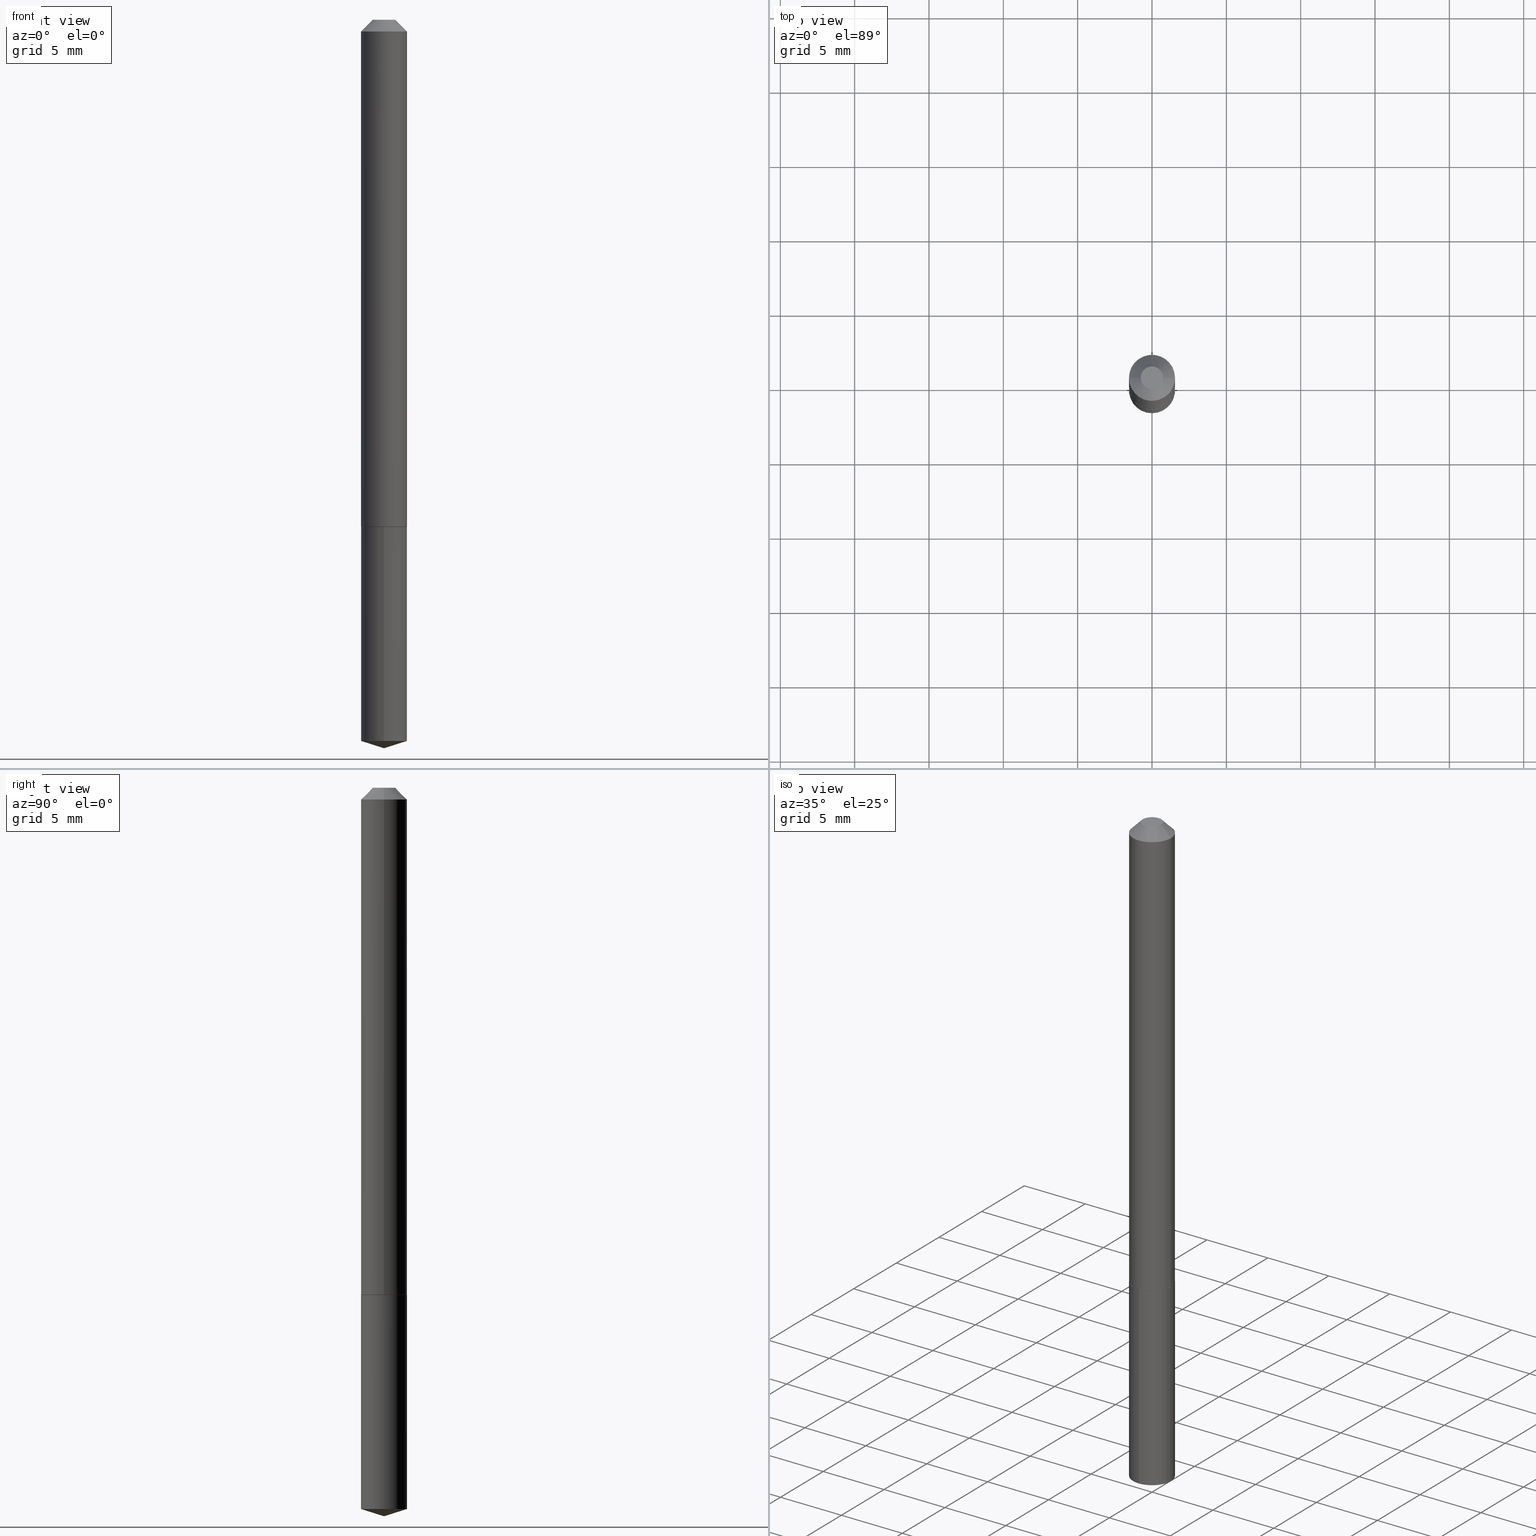
[diagram: canonical four-view strip — front | top / right | iso, engineering-drawing reading convention]
A machine part, canonical four-view strip (front | top / right | iso — engineering-drawing reading convention). The complete STEP part file that produces these views, byte-faithful:
ISO-10303-21;
HEADER;
FILE_DESCRIPTION (( 'STEP AP203' ),
    '1' );
FILE_NAME ('62073.STEP',
    '2024-04-23T05:32:35',
    ( '' ),
    ( '' ),
    'SwSTEP 2.0',
    'SolidWorks 2023',
    '' );
FILE_SCHEMA (( 'CONFIG_CONTROL_DESIGN' ));
ENDSEC;

DATA;
#1 = VECTOR ( 'NONE', #158, 39.37007874015748143 ) ;
#2 = DATE_TIME_ROLE ( 'classification_date' ) ;
#3 = CYLINDRICAL_SURFACE ( 'NONE', #385, 0.06100000000000008193 ) ;
#4 = PERSON_AND_ORGANIZATION_ROLE ( 'design_supplier' ) ;
#5 = DIRECTION ( 'NONE',  ( -6.982962677686268288E-15, -1.000000000000000000, 3.500519750498639351E-15 ) ) ;
#6 = CALENDAR_DATE ( 2024, 23, 4 ) ;
#7 = AXIS2_PLACEMENT_3D ( 'NONE', #273, #245, #362 ) ;
#8 = PERSON_AND_ORGANIZATION ( #263, #314 ) ;
#9 = VERTEX_POINT ( 'NONE', #37 ) ;
#10 = DIRECTION ( 'NONE',  ( -2.445528322279636320E-29, 3.491396108408376295E-15, 1.000000000000000000 ) ) ;
#11 = EDGE_LOOP ( 'NONE', ( #50, #220, #386, #389 ) ) ;
#12 = CARTESIAN_POINT ( 'NONE',  ( 4.334310688136938416E-16, 0.06099999999999530798, -1.342400000000000038 ) ) ;
#13 = EDGE_LOOP ( 'NONE', ( #48, #298, #127 ) ) ;
#14 = VECTOR ( 'NONE', #267, 39.37007874015748854 ) ;
#15 = DIRECTION ( 'NONE',  ( -2.445468806185136877E-29, 3.491481338843145188E-15, 1.000000000000000000 ) ) ;
#16 = APPROVAL ( #39, 'UNSPECIFIED' ) ;
#17 = VERTEX_POINT ( 'NONE', #289 ) ;
#18 = CARTESIAN_POINT ( 'NONE',  ( 4.670553392895165587E-29, -6.668215835233079281E-15, -1.909866773878382551 ) ) ;
#19 = ORIENTED_EDGE ( 'NONE', *, *, #239, .T. ) ;
#20 = CARTESIAN_POINT ( 'NONE',  ( -5.839929314523175409E-48, 8.337871319499082469E-34, 2.388061258337334140E-19 ) ) ;
#21 = CLOSED_SHELL ( 'NONE', ( #126, #388, #93, #354, #159 ) ) ;
#22 = DIRECTION ( 'NONE',  ( -2.445468806185136597E-29, 3.491481338843145583E-15, 1.000000000000000000 ) ) ;
#23 = AXIS2_PLACEMENT_3D ( 'NONE', #261, #374, #225 ) ;
#24 = CARTESIAN_POINT ( 'NONE',  ( 7.515549292457531832E-29, 1.374577180811171330E-15, -1.342399999999999816 ) ) ;
#25 = LINE ( 'NONE', #97, #377 ) ;
#26 = AXIS2_PLACEMENT_3D ( 'NONE', #74, #198, #31 ) ;
#27 = CONICAL_SURFACE ( 'NONE', #26, 124.8659371009173924, 1.265363707695897011 ) ;
#28 = ADVANCED_FACE ( 'NONE', ( #319 ), #246, .T. ) ;
#29 = CARTESIAN_POINT ( 'NONE',  ( 7.642090019328599159E-31, -1.091087918388489774E-16, -0.03125000000000019429 ) ) ;
#30 = PERSON_AND_ORGANIZATION_ROLE ( 'classification_officer' ) ;
#31 = DIRECTION ( 'NONE',  ( -6.982962677686268288E-15, -1.000000000000000000, 3.500519750498639351E-15 ) ) ;
#32 = DATE_AND_TIME ( #6, #361 ) ;
#33 = LOCAL_TIME ( 1, 32, 35.00000000000000000, #151 ) ;
#34 = CIRCLE ( 'NONE', #106, 0.06099999999999999173 ) ;
#35 = CC_DESIGN_DATE_AND_TIME_ASSIGNMENT ( #331, #2, ( #56 ) ) ;
#36 = UNCERTAINTY_MEASURE_WITH_UNIT (LENGTH_MEASURE( 1.000000000000000082E-05 ), #57, 'distance_accuracy_value', 'NONE');
#37 = CARTESIAN_POINT ( 'NONE',  ( 4.717668686509646130E-29, -6.735252232730598174E-15, -1.929099999999999815 ) ) ;
#38 = DIRECTION ( 'NONE',  ( 1.000000000000000000, -6.982962677686265922E-15, 0.000000000000000000 ) ) ;
#39 = APPROVAL_STATUS ( 'not_yet_approved' ) ;
#40 = CARTESIAN_POINT ( 'NONE',  ( -0.06100000000000016520, -4.251787739779952795E-15, -1.341899999999999649 ) ) ;
#41 = EDGE_CURVE ( 'NONE', #9, #372, #255, .T. ) ;
#42 = APPROVAL_PERSON_ORGANIZATION ( #8, #16, #368 ) ;
#43 = DIRECTION ( 'NONE',  ( 1.000000000000000000, -6.982962677686265922E-15, 0.000000000000000000 ) ) ;
#44 = VERTEX_POINT ( 'NONE', #195 ) ;
#45 = DIRECTION ( 'NONE',  ( -2.445468806185136597E-29, 3.491481338843145583E-15, 1.000000000000000000 ) ) ;
#46 = EDGE_CURVE ( 'NONE', #256, #90, #206, .T. ) ;
#47 = DIRECTION ( 'NONE',  ( 2.445468806185136597E-29, -3.491481338843145583E-15, -1.000000000000000000 ) ) ;
#48 = ORIENTED_EDGE ( 'NONE', *, *, #41, .F. ) ;
#49 = CARTESIAN_POINT ( 'NONE',  ( 4.334310688137077946E-16, 0.06099999999999530798, -1.342400000000000038 ) ) ;
#50 = ORIENTED_EDGE ( 'NONE', *, *, #215, .F. ) ;
#51 = DIRECTION ( 'NONE',  ( 1.000000000000000000, -6.982962677686265922E-15, 0.000000000000000000 ) ) ;
#52 = VERTEX_POINT ( 'NONE', #371 ) ;
#53 = DIRECTION ( 'NONE',  ( -2.445468806185136597E-29, 3.491481338843145583E-15, 1.000000000000000000 ) ) ;
#54 = CC_DESIGN_PERSON_AND_ORGANIZATION_ASSIGNMENT ( #274, #65, ( #153 ) ) ;
#55 = EDGE_LOOP ( 'NONE', ( #197, #351 ) ) ;
#56 = SECURITY_CLASSIFICATION ( '', '', #280 ) ;
#57 =( CONVERSION_BASED_UNIT ( 'INCH', #327 ) LENGTH_UNIT ( ) NAMED_UNIT ( #259 ) );
#58 = CIRCLE ( 'NONE', #84, 0.06099999999999999173 ) ;
#59 = APPLICATION_PROTOCOL_DEFINITION ( 'international standard', 'config_control_design', 1994, #156 ) ;
#60 = EDGE_CURVE ( 'NONE', #372, #52, #34, .T. ) ;
#61 = CARTESIAN_POINT ( 'NONE',  ( 4.334310688137076467E-16, 0.06099999999999330957, -1.909866773878382773 ) ) ;
#62 = ORIENTED_EDGE ( 'NONE', *, *, #135, .T. ) ;
#63 = CARTESIAN_POINT ( 'NONE',  ( -9.156305381733011471E-28, 1.307211730550509619E-13, 37.44097874015747607 ) ) ;
#64 = AXIS2_PLACEMENT_3D ( 'NONE', #20, #265, #87 ) ;
#65 = PERSON_AND_ORGANIZATION_ROLE ( 'creator' ) ;
#66 = APPROVAL_ROLE ( '' ) ;
#67 = CARTESIAN_POINT ( 'NONE',  ( 0.06050000000000021333, -5.109433791263057805E-15, -1.342399999999999594 ) ) ;
#68 = EDGE_CURVE ( 'NONE', #145, #90, #222, .T. ) ;
#69 = PERSON_AND_ORGANIZATION ( #263, #314 ) ;
#70 = AXIS2_PLACEMENT_3D ( 'NONE', #275, #271, #95 ) ;
#71 = DIRECTION ( 'NONE',  ( 6.776566513254267604E-15, 0.9537169507482303743, 0.3007057995042620724 ) ) ;
#72 = PERSON_AND_ORGANIZATION_ROLE ( 'design_owner' ) ;
#73 = CARTESIAN_POINT ( 'NONE',  ( -0.06100000000000016520, -4.251787739779952795E-15, -1.341899999999999649 ) ) ;
#74 = CARTESIAN_POINT ( 'NONE',  ( -9.156305381733011471E-28, 1.307211730550509619E-13, 37.44097874015747607 ) ) ;
#75 = AXIS2_PLACEMENT_3D ( 'NONE', #168, #369, #103 ) ;
#76 = CIRCLE ( 'NONE', #182, 0.06099999999999999173 ) ;
#77 = EDGE_LOOP ( 'NONE', ( #266, #81, #203, #209 ) ) ;
#78 = FACE_OUTER_BOUND ( 'NONE', #240, .T. ) ;
#79 = ORIENTED_EDGE ( 'NONE', *, *, #142, .T. ) ;
#80 = CARTESIAN_POINT ( 'NONE',  ( 0.06100000000000016520, -5.111179531932479308E-15, -1.341899999999999649 ) ) ;
#81 = ORIENTED_EDGE ( 'NONE', *, *, #170, .T. ) ;
#82 = CARTESIAN_POINT ( 'NONE',  ( -2.919964657261587705E-48, 4.168935659749541235E-34, 1.194030629168667070E-19 ) ) ;
#83 = ORIENTED_EDGE ( 'NONE', *, *, #336, .T. ) ;
#84 = AXIS2_PLACEMENT_3D ( 'NONE', #258, #316, #233 ) ;
#85 = DIRECTION ( 'NONE',  ( -1.000000000000000000, 6.982962677686265922E-15, -4.876176775795935793E-29 ) ) ;
#86 = ORIENTED_EDGE ( 'NONE', *, *, #380, .T. ) ;
#87 = DIRECTION ( 'NONE',  ( 1.000000000000000000, -6.982962677686266711E-15, 4.876192930765217323E-29 ) ) ;
#88 = PRODUCT_RELATED_PRODUCT_CATEGORY ( 'detail', '', ( #124 ) ) ;
#89 = LINE ( 'NONE', #125, #1 ) ;
#90 = VERTEX_POINT ( 'NONE', #40 ) ;
#91 = DIRECTION ( 'NONE',  ( 1.000000000000000000, -6.982962677686265922E-15, 4.876176775795935793E-29 ) ) ;
#92 = CIRCLE ( 'NONE', #306, 0.06099999999999999173 ) ;
#93 = ADVANCED_FACE ( 'NONE', ( #344 ), #27, .T. ) ;
#94 = ADVANCED_BREP_SHAPE_REPRESENTATION ( '62073', ( #101, #342, #155 ), #235 ) ;
#95 = DIRECTION ( 'NONE',  ( 1.000000000000000000, -6.982962677686266711E-15, 4.876176775795935793E-29 ) ) ;
#96 = ORIENTED_EDGE ( 'NONE', *, *, #348, .T. ) ;
#97 = CARTESIAN_POINT ( 'NONE',  ( -4.259607233388293679E-16, -0.06100000000000468242, -1.342399999999999594 ) ) ;
#98 = PERSON_AND_ORGANIZATION ( #263, #314 ) ;
#99 = DATE_AND_TIME ( #192, #353 ) ;
#100 = PERSON_AND_ORGANIZATION ( #263, #314 ) ;
#101 = MANIFOLD_SOLID_BREP ( 'Body-Move/Copy2[1]', #21 ) ;
#102 = COORDINATED_UNIVERSAL_TIME_OFFSET ( 5, 0, .BEHIND. ) ;
#103 = DIRECTION ( 'NONE',  ( 1.000000000000000000, -6.982962677686265922E-15, 0.000000000000000000 ) ) ;
#104 = APPROVAL_ROLE ( '' ) ;
#105 = MECHANICAL_CONTEXT ( 'NONE', #156, 'mechanical' ) ;
#106 = AXIS2_PLACEMENT_3D ( 'NONE', #219, #218, #341 ) ;
#107 = PRODUCT_DEFINITION ( 'UNKNOWN', '', #153, #387 ) ;
#108 = DIRECTION ( 'NONE',  ( -2.445468806185136597E-29, 3.491481338843145583E-15, 1.000000000000000000 ) ) ;
#109 = VERTEX_POINT ( 'NONE', #67 ) ;
#110 = DIRECTION ( 'NONE',  ( -2.445468806185136597E-29, 3.491481338843145583E-15, 1.000000000000000000 ) ) ;
#111 = VECTOR ( 'NONE', #115, 39.37007874015748143 ) ;
#112 = CIRCLE ( 'NONE', #23, 0.06099999999999999173 ) ;
#113 = ORIENTED_EDGE ( 'NONE', *, *, #41, .T. ) ;
#114 = PRODUCT_DEFINITION_SHAPE ( 'NONE', 'NONE',  #107 ) ;
#115 = DIRECTION ( 'NONE',  ( -0.7071067811865453523, 2.468850131082234184E-15, -0.7071067811865496822 ) ) ;
#116 = LINE ( 'NONE', #12, #279 ) ;
#117 = ORIENTED_EDGE ( 'NONE', *, *, #149, .F. ) ;
#118 = CARTESIAN_POINT ( 'NONE',  ( 3.282797325422927074E-29, -4.686964549263038164E-15, -1.342399999999999816 ) ) ;
#119 = APPROVAL_PERSON_ORGANIZATION ( #133, #249, #66 ) ;
#120 = AXIS2_PLACEMENT_3D ( 'NONE', #276, #303, #366 ) ;
#121 = EDGE_CURVE ( 'NONE', #177, #343, #207, .T. ) ;
#122 = LINE ( 'NONE', #291, #262 ) ;
#123 =( NAMED_UNIT ( * ) PLANE_ANGLE_UNIT ( ) SI_UNIT ( $, .RADIAN. ) );
#124 = PRODUCT ( '62073', '62073', '', ( #105 ) ) ;
#125 = CARTESIAN_POINT ( 'NONE',  ( 0.06100000000000016520, -5.111179531932479308E-15, -1.341899999999999649 ) ) ;
#126 = ADVANCED_FACE ( 'NONE', ( #384 ), #358, .T. ) ;
#127 = ORIENTED_EDGE ( 'NONE', *, *, #60, .F. ) ;
#128 = CARTESIAN_POINT ( 'NONE',  ( 3.282797325422927074E-29, -4.686964549263038164E-15, -1.342399999999999816 ) ) ;
#129 = AXIS2_PLACEMENT_3D ( 'NONE', #24, #330, #91 ) ;
#130 = CARTESIAN_POINT ( 'NONE',  ( 0.000000000000000000, 0.000000000000000000, 0.000000000000000000 ) ) ;
#131 = FACE_OUTER_BOUND ( 'NONE', #232, .T. ) ;
#132 = ADVANCED_FACE ( 'NONE', ( #323 ), #237, .F. ) ;
#133 = PERSON_AND_ORGANIZATION ( #263, #314 ) ;
#134 = CARTESIAN_POINT ( 'NONE',  ( 4.717670087668898739E-29, -6.735252232730598174E-15, -1.929099999999999815 ) ) ;
#135 = EDGE_CURVE ( 'NONE', #17, #287, #297, .T. ) ;
#136 = CIRCLE ( 'NONE', #311, 0.06050000000000021333 ) ;
#137 = PERSON_AND_ORGANIZATION_ROLE ( 'creator' ) ;
#138 = ORIENTED_EDGE ( 'NONE', *, *, #239, .F. ) ;
#139 = CALENDAR_DATE ( 2024, 23, 4 ) ;
#140 = DIRECTION ( 'NONE',  ( -2.445528322279636320E-29, 3.491396108408376295E-15, 1.000000000000000000 ) ) ;
#141 = ORIENTED_EDGE ( 'NONE', *, *, #68, .F. ) ;
#142 = EDGE_CURVE ( 'NONE', #343, #177, #58, .T. ) ;
#143 = CARTESIAN_POINT ( 'NONE',  ( -0.06100000000000008193, 4.334310688136616956E-16, -3.000550405055496697E-30 ) ) ;
#144 = CIRCLE ( 'NONE', #120, 0.02974999999999999520 ) ;
#145 = VERTEX_POINT ( 'NONE', #204 ) ;
#146 = CARTESIAN_POINT ( 'NONE',  ( 0.02974999999999999520, -3.658494925683076743E-16, 2.388061258357383071E-19 ) ) ;
#147 = ORIENTED_EDGE ( 'NONE', *, *, #299, .F. ) ;
#148 = LINE ( 'NONE', #315, #111 ) ;
#149 = EDGE_CURVE ( 'NONE', #90, #256, #340, .T. ) ;
#150 = ORIENTED_EDGE ( 'NONE', *, *, #60, .T. ) ;
#151 = COORDINATED_UNIVERSAL_TIME_OFFSET ( 5, 0, .BEHIND. ) ;
#152 = DIRECTION ( 'NONE',  ( 6.982962677686265922E-15, 1.000000000000000000, -3.491396108408376295E-15 ) ) ;
#153 = PRODUCT_DEFINITION_FORMATION_WITH_SPECIFIED_SOURCE ( 'ANY', '', #124, .NOT_KNOWN. ) ;
#154 = CLOSED_SHELL ( 'NONE', ( #270, #317, #221, #294, #28, #365, #324, #132 ) ) ;
#155 = AXIS2_PLACEMENT_3D ( 'NONE', #370, #309, #167 ) ;
#156 = APPLICATION_CONTEXT ( 'configuration controlled 3d designs of mechanical parts and assemblies' ) ;
#157 = DIRECTION ( 'NONE',  ( 2.445468806185136597E-29, -3.491481338843145583E-15, -1.000000000000000000 ) ) ;
#158 = DIRECTION ( 'NONE',  ( 0.7071067811865837660, -2.468850131082636503E-15, 0.7071067811865112684 ) ) ;
#159 = ADVANCED_FACE ( 'NONE', ( #318 ), #178, .F. ) ;
#160 = APPROVAL_DATE_TIME ( #217, #176 ) ;
#161 = CARTESIAN_POINT ( 'NONE',  ( 3.282797325422925953E-29, -4.686964549263036586E-15, -1.342399999999999594 ) ) ;
#162 = FACE_OUTER_BOUND ( 'NONE', #174, .T. ) ;
#163 = CC_DESIGN_PERSON_AND_ORGANIZATION_ASSIGNMENT ( #69, #72, ( #124 ) ) ;
#164 = CARTESIAN_POINT ( 'NONE',  ( 3.281574591019834273E-29, -4.685218808593615871E-15, -1.341899999999999649 ) ) ;
#165 = CIRCLE ( 'NONE', #7, 0.06050000000000021333 ) ;
#166 = EDGE_CURVE ( 'NONE', #287, #250, #122, .T. ) ;
#167 = DIRECTION ( 'NONE',  ( 1.000000000000000000, 0.000000000000000000, 0.000000000000000000 ) ) ;
#168 = CARTESIAN_POINT ( 'NONE',  ( 3.281574591019834273E-29, -4.685218808593615871E-15, -1.341899999999999649 ) ) ;
#169 = CARTESIAN_POINT ( 'NONE',  ( 4.717508897699133767E-29, -6.735481059401867667E-15, -1.929099999999999815 ) ) ;
#170 = EDGE_CURVE ( 'NONE', #372, #177, #116, .T. ) ;
#171 = FACE_OUTER_BOUND ( 'NONE', #230, .T. ) ;
#172 = CARTESIAN_POINT ( 'NONE',  ( 0.06100000000000008193, -4.259607233388628452E-16, 2.974467833235524715E-30 ) ) ;
#173 = AXIS2_PLACEMENT_3D ( 'NONE', #378, #47, #228 ) ;
#174 = EDGE_LOOP ( 'NONE', ( #264, #150, #83, #236 ) ) ;
#175 = CARTESIAN_POINT ( 'NONE',  ( 3.282797325422927074E-29, -4.686964549263038164E-15, -1.342399999999999816 ) ) ;
#176 = APPROVAL ( #248, 'UNSPECIFIED' ) ;
#177 = VERTEX_POINT ( 'NONE', #49 ) ;
#178 = PLANE ( 'NONE',  #282 ) ;
#179 = ORIENTED_EDGE ( 'NONE', *, *, #215, .T. ) ;
#180 = CC_DESIGN_APPROVAL ( #249, ( #153 ) ) ;
#181 = ORIENTED_EDGE ( 'NONE', *, *, #68, .T. ) ;
#182 = AXIS2_PLACEMENT_3D ( 'NONE', #18, #10, #288 ) ;
#183 = ORIENTED_EDGE ( 'NONE', *, *, #135, .F. ) ;
#184 = CC_DESIGN_PERSON_AND_ORGANIZATION_ASSIGNMENT ( #191, #30, ( #56 ) ) ;
#185 =( LENGTH_UNIT ( ) NAMED_UNIT ( * ) SI_UNIT ( $, .METRE. ) );
#186 = DIRECTION ( 'NONE',  ( 1.000000000000000000, -6.982962677686268288E-15, 0.000000000000000000 ) ) ;
#187 = LOCAL_TIME ( 1, 32, 35.00000000000000000, #364 ) ;
#188 = DIRECTION ( 'NONE',  ( -2.445528322279636320E-29, 3.491396108408376295E-15, 1.000000000000000000 ) ) ;
#189 = EDGE_CURVE ( 'NONE', #17, #44, #148, .T. ) ;
#190 = APPLICATION_CONTEXT ( 'configuration controlled 3d designs of mechanical parts and assemblies' ) ;
#191 = PERSON_AND_ORGANIZATION ( #263, #314 ) ;
#192 = CALENDAR_DATE ( 2024, 23, 4 ) ;
#193 = DIRECTION ( 'NONE',  ( -2.445528322279636320E-29, 3.491396108408376295E-15, 1.000000000000000000 ) ) ;
#194 = CONICAL_SURFACE ( 'NONE', #212, 124.8659371009173924, 1.265363707695897011 ) ;
#195 = CARTESIAN_POINT ( 'NONE',  ( -0.06099999999999999173, -1.963732731402569410E-15, -0.03125000000000019429 ) ) ;
#196 = DIRECTION ( 'NONE',  ( -0.7071067811865837660, 7.493145998870485111E-15, 0.7071067811865112684 ) ) ;
#197 = ORIENTED_EDGE ( 'NONE', *, *, #348, .F. ) ;
#198 = DIRECTION ( 'NONE',  ( -2.445528322279636320E-29, 3.491396108408376295E-15, 1.000000000000000000 ) ) ;
#199 = AXIS2_PLACEMENT_3D ( 'NONE', #128, #360, #211 ) ;
#200 = CC_DESIGN_PERSON_AND_ORGANIZATION_ASSIGNMENT ( #312, #137, ( #107 ) ) ;
#201 = EDGE_LOOP ( 'NONE', ( #79, #292 ) ) ;
#202 = DIRECTION ( 'NONE',  ( -2.445468806185136597E-29, 3.491481338843145583E-15, 1.000000000000000000 ) ) ;
#203 = ORIENTED_EDGE ( 'NONE', *, *, #142, .F. ) ;
#204 = CARTESIAN_POINT ( 'NONE',  ( -0.06050000000000021333, -4.254436966954063996E-15, -1.342399999999999594 ) ) ;
#205 = DIRECTION ( 'NONE',  ( -2.445468806185136877E-29, 3.491481338843145188E-15, 1.000000000000000000 ) ) ;
#206 = CIRCLE ( 'NONE', #355, 0.06100000000000016520 ) ;
#207 = CIRCLE ( 'NONE', #234, 0.06099999999999999173 ) ;
#208 = CARTESIAN_POINT ( 'NONE',  ( 3.281574591019834273E-29, -4.685218808593615871E-15, -1.341899999999999649 ) ) ;
#209 = ORIENTED_EDGE ( 'NONE', *, *, #336, .F. ) ;
#210 = ORIENTED_EDGE ( 'NONE', *, *, #189, .T. ) ;
#211 = DIRECTION ( 'NONE',  ( -6.982962677686265922E-15, -1.000000000000000000, 4.478439333875842027E-15 ) ) ;
#212 = AXIS2_PLACEMENT_3D ( 'NONE', #63, #188, #5 ) ;
#213 = AXIS2_PLACEMENT_3D ( 'NONE', #208, #45, #51 ) ;
#214 = CARTESIAN_POINT ( 'NONE',  ( -4.259607233388293679E-16, -0.06100000000000468242, -1.342399999999999594 ) ) ;
#215 = EDGE_CURVE ( 'NONE', #90, #44, #352, .T. ) ;
#216 = CYLINDRICAL_SURFACE ( 'NONE', #70, 0.06100000000000008193 ) ;
#217 = DATE_AND_TIME ( #301, #187 ) ;
#218 = DIRECTION ( 'NONE',  ( -2.445528322279636320E-29, 3.491396108408376295E-15, 1.000000000000000000 ) ) ;
#219 = CARTESIAN_POINT ( 'NONE',  ( 4.670553392895165587E-29, -6.668215835233079281E-15, -1.909866773878382551 ) ) ;
#220 = ORIENTED_EDGE ( 'NONE', *, *, #149, .T. ) ;
#221 = ADVANCED_FACE ( 'NONE', ( #171 ), #226, .T. ) ;
#222 = LINE ( 'NONE', #73, #321 ) ;
#223 = ORIENTED_EDGE ( 'NONE', *, *, #46, .T. ) ;
#224 = APPROVAL_DATE_TIME ( #257, #249 ) ;
#225 = DIRECTION ( 'NONE',  ( 1.000000000000000000, -6.982962677686268288E-15, 0.000000000000000000 ) ) ;
#226 = CONICAL_SURFACE ( 'NONE', #346, 0.06100000000000016520, 0.7853981633974995713 ) ;
#227 = ORIENTED_EDGE ( 'NONE', *, *, #253, .T. ) ;
#228 = DIRECTION ( 'NONE',  ( -1.000000000000000000, 6.982962677686265922E-15, 0.000000000000000000 ) ) ;
#229 = EDGE_CURVE ( 'NONE', #9, #52, #350, .T. ) ;
#230 = EDGE_LOOP ( 'NONE', ( #96, #181, #359, #147 ) ) ;
#231 = DIRECTION ( 'NONE',  ( -2.445528322279636600E-29, 3.491396108408376295E-15, 1.000000000000000000 ) ) ;
#232 = EDGE_LOOP ( 'NONE', ( #357, #183, #210, #227 ) ) ;
#233 = DIRECTION ( 'NONE',  ( -6.982962677686265922E-15, -1.000000000000000000, 4.478439333875842027E-15 ) ) ;
#234 = AXIS2_PLACEMENT_3D ( 'NONE', #278, #193, #310 ) ;
#235 =( GEOMETRIC_REPRESENTATION_CONTEXT ( 3 ) GLOBAL_UNCERTAINTY_ASSIGNED_CONTEXT ( ( #36 ) ) GLOBAL_UNIT_ASSIGNED_CONTEXT ( ( #57, #123, #272 ) ) REPRESENTATION_CONTEXT ( 'NONE', 'WORKASPACE' ) );
#236 = ORIENTED_EDGE ( 'NONE', *, *, #121, .F. ) ;
#237 = PLANE ( 'NONE',  #284 ) ;
#238 = DIRECTION ( 'NONE',  ( -1.000000000000000000, 6.982962677686265922E-15, 0.000000000000000000 ) ) ;
#239 = EDGE_CURVE ( 'NONE', #250, #44, #92, .T. ) ;
#240 = EDGE_LOOP ( 'NONE', ( #322, #302, #19, #376 ) ) ;
#241 = FACE_OUTER_BOUND ( 'NONE', #11, .T. ) ;
#242 = ORIENTED_EDGE ( 'NONE', *, *, #243, .F. ) ;
#243 = EDGE_CURVE ( 'NONE', #52, #372, #76, .T. ) ;
#244 = DIRECTION ( 'NONE',  ( 1.000000000000000000, -6.982962677686266711E-15, 4.876176775795935793E-29 ) ) ;
#245 = DIRECTION ( 'NONE',  ( -2.445468806185136597E-29, 3.491481338843145583E-15, 1.000000000000000000 ) ) ;
#246 = CONICAL_SURFACE ( 'NONE', #75, 0.06100000000000016520, 0.7853981633974995713 ) ;
#247 = CC_DESIGN_APPROVAL ( #16, ( #107 ) ) ;
#248 = APPROVAL_STATUS ( 'not_yet_approved' ) ;
#249 = APPROVAL ( #338, 'UNSPECIFIED' ) ;
#250 = VERTEX_POINT ( 'NONE', #382 ) ;
#251 = APPROVAL_PERSON_ORGANIZATION ( #100, #176, #104 ) ;
#252 = APPROVAL_DATE_TIME ( #32, #16 ) ;
#253 = EDGE_CURVE ( 'NONE', #44, #250, #112, .T. ) ;
#254 = ORIENTED_EDGE ( 'NONE', *, *, #299, .T. ) ;
#255 = LINE ( 'NONE', #134, #296 ) ;
#256 = VERTEX_POINT ( 'NONE', #80 ) ;
#257 = DATE_AND_TIME ( #139, #33 ) ;
#258 = CARTESIAN_POINT ( 'NONE',  ( 3.282797325422927074E-29, -4.686964549263038164E-15, -1.342399999999999816 ) ) ;
#259 = DIMENSIONAL_EXPONENTS ( 1.000000000000000000, 0.000000000000000000, 0.000000000000000000, 0.000000000000000000, 0.000000000000000000, 0.000000000000000000, 0.000000000000000000 ) ;
#260 = AXIS2_PLACEMENT_3D ( 'NONE', #118, #140, #356 ) ;
#261 = CARTESIAN_POINT ( 'NONE',  ( 7.642090019328599159E-31, -1.091087918388489774E-16, -0.03125000000000019429 ) ) ;
#262 = VECTOR ( 'NONE', #269, 39.37007874015748143 ) ;
#263 = PERSON ( 'UNSPECIFIED', 'UNSPECIFIED', 'UNSPECIFIED', ('UNSPECIFIED'), ('UNSPECIFIED'), ('UNSPECIFIED') ) ;
#264 = ORIENTED_EDGE ( 'NONE', *, *, #170, .F. ) ;
#265 = DIRECTION ( 'NONE',  ( -2.445468806185136597E-29, 3.491481338843145583E-15, 1.000000000000000000 ) ) ;
#266 = ORIENTED_EDGE ( 'NONE', *, *, #243, .T. ) ;
#267 = DIRECTION ( 'NONE',  ( -6.659769872151641555E-15, -0.9537169507482281539, 0.3007057995042686782 ) ) ;
#268 = ORIENTED_EDGE ( 'NONE', *, *, #283, .F. ) ;
#269 = DIRECTION ( 'NONE',  ( 0.7071067811865453523, -7.319954787623248157E-15, -0.7071067811865496822 ) ) ;
#270 = ADVANCED_FACE ( 'NONE', ( #78 ), #328, .T. ) ;
#271 = DIRECTION ( 'NONE',  ( -2.445468806185136597E-29, 3.491481338843145583E-15, 1.000000000000000000 ) ) ;
#272 =( NAMED_UNIT ( * ) SI_UNIT ( $, .STERADIAN. ) SOLID_ANGLE_UNIT ( ) );
#273 = CARTESIAN_POINT ( 'NONE',  ( 3.282797325422925953E-29, -4.686964549263036586E-15, -1.342399999999999594 ) ) ;
#274 = PERSON_AND_ORGANIZATION ( #263, #314 ) ;
#275 = CARTESIAN_POINT ( 'NONE',  ( 0.000000000000000000, 0.000000000000000000, 0.000000000000000000 ) ) ;
#276 = CARTESIAN_POINT ( 'NONE',  ( -5.839929314523175409E-48, 8.337871319499082469E-34, 2.388061258337334140E-19 ) ) ;
#277 = APPLICATION_PROTOCOL_DEFINITION ( 'international standard', 'config_control_design', 1994, #190 ) ;
#278 = CARTESIAN_POINT ( 'NONE',  ( 3.282797325422927074E-29, -4.686964549263038164E-15, -1.342399999999999816 ) ) ;
#279 = VECTOR ( 'NONE', #231, 39.37007874015748143 ) ;
#280 = SECURITY_CLASSIFICATION_LEVEL ( 'unclassified' ) ;
#281 = CC_DESIGN_APPROVAL ( #176, ( #56 ) ) ;
#282 = AXIS2_PLACEMENT_3D ( 'NONE', #175, #293, #152 ) ;
#283 = EDGE_CURVE ( 'NONE', #256, #250, #290, .T. ) ;
#284 = AXIS2_PLACEMENT_3D ( 'NONE', #82, #379, #85 ) ;
#285 = VECTOR ( 'NONE', #15, 39.37007874015748143 ) ;
#286 = CARTESIAN_POINT ( 'NONE',  ( 7.642090019328599159E-31, -1.091087918388489774E-16, -0.03125000000000019429 ) ) ;
#287 = VERTEX_POINT ( 'NONE', #146 ) ;
#288 = DIRECTION ( 'NONE',  ( -6.982962677686265922E-15, -1.000000000000000000, 4.478439333875842027E-15 ) ) ;
#289 = CARTESIAN_POINT ( 'NONE',  ( -0.02974999999999999520, 2.622975355805897859E-16, 2.388061258320900661E-19 ) ) ;
#290 = LINE ( 'NONE', #172, #285 ) ;
#291 = CARTESIAN_POINT ( 'NONE',  ( 0.06099999999999999173, -5.275991697029123066E-16, -0.03125000000000019429 ) ) ;
#292 = ORIENTED_EDGE ( 'NONE', *, *, #121, .T. ) ;
#293 = DIRECTION ( 'NONE',  ( 2.445528322279636040E-29, -3.491396108408376295E-15, -1.000000000000000000 ) ) ;
#294 = ADVANCED_FACE ( 'NONE', ( #363 ), #295, .F. ) ;
#295 = PLANE ( 'NONE',  #129 ) ;
#296 = VECTOR ( 'NONE', #71, 39.37007874015748143 ) ;
#297 = CIRCLE ( 'NONE', #64, 0.02974999999999999520 ) ;
#298 = ORIENTED_EDGE ( 'NONE', *, *, #229, .T. ) ;
#299 = EDGE_CURVE ( 'NONE', #109, #256, #89, .T. ) ;
#300 = DIRECTION ( 'NONE',  ( -2.445528322279636600E-29, 3.491396108408376295E-15, 1.000000000000000000 ) ) ;
#301 = CALENDAR_DATE ( 2024, 23, 4 ) ;
#302 = ORIENTED_EDGE ( 'NONE', *, *, #166, .T. ) ;
#303 = DIRECTION ( 'NONE',  ( -2.445468806185136597E-29, 3.491481338843145583E-15, 1.000000000000000000 ) ) ;
#304 = LOCAL_TIME ( 1, 32, 35.00000000000000000, #367 ) ;
#305 = SHAPE_DEFINITION_REPRESENTATION ( #114, #94 ) ;
#306 = AXIS2_PLACEMENT_3D ( 'NONE', #286, #110, #320 ) ;
#307 = CYLINDRICAL_SURFACE ( 'NONE', #199, 0.06099999999999999173 ) ;
#308 = EDGE_CURVE ( 'NONE', #145, #109, #165, .T. ) ;
#309 = DIRECTION ( 'NONE',  ( 0.000000000000000000, 0.000000000000000000, 1.000000000000000000 ) ) ;
#310 = DIRECTION ( 'NONE',  ( -6.982962677686265922E-15, -1.000000000000000000, 4.478439333875842027E-15 ) ) ;
#311 = AXIS2_PLACEMENT_3D ( 'NONE', #161, #53, #186 ) ;
#312 = PERSON_AND_ORGANIZATION ( #263, #314 ) ;
#313 = CC_DESIGN_DATE_AND_TIME_ASSIGNMENT ( #99, #335, ( #107 ) ) ;
#314 = ORGANIZATION ( 'UNSPECIFIED', 'UNSPECIFIED', '' ) ;
#315 = CARTESIAN_POINT ( 'NONE',  ( -0.06099999999999999173, 3.168519315000132022E-16, -0.03125000000000019429 ) ) ;
#316 = DIRECTION ( 'NONE',  ( -2.445528322279636320E-29, 3.491396108408376295E-15, 1.000000000000000000 ) ) ;
#317 = ADVANCED_FACE ( 'NONE', ( #390 ), #3, .T. ) ;
#318 = FACE_OUTER_BOUND ( 'NONE', #201, .T. ) ;
#319 = FACE_OUTER_BOUND ( 'NONE', #345, .T. ) ;
#320 = DIRECTION ( 'NONE',  ( 1.000000000000000000, -6.982962677686268288E-15, 0.000000000000000000 ) ) ;
#321 = VECTOR ( 'NONE', #196, 39.37007874015748143 ) ;
#322 = ORIENTED_EDGE ( 'NONE', *, *, #380, .F. ) ;
#323 = FACE_OUTER_BOUND ( 'NONE', #383, .T. ) ;
#324 = ADVANCED_FACE ( 'NONE', ( #131 ), #334, .T. ) ;
#325 = EDGE_LOOP ( 'NONE', ( #381, #113, #242 ) ) ;
#326 = VECTOR ( 'NONE', #205, 39.37007874015748143 ) ;
#327 = LENGTH_MEASURE_WITH_UNIT ( LENGTH_MEASURE( 0.02539999999999999897 ), #185 );
#328 = CONICAL_SURFACE ( 'NONE', #173, 0.06099999999999999173, 0.7853981633974452814 ) ;
#329 = EDGE_LOOP ( 'NONE', ( #223, #179, #138, #268 ) ) ;
#330 = DIRECTION ( 'NONE',  ( -2.438088387897960049E-29, 3.491481338843145188E-15, 1.000000000000000000 ) ) ;
#331 = DATE_AND_TIME ( #337, #304 ) ;
#332 = FACE_OUTER_BOUND ( 'NONE', #325, .T. ) ;
#333 = CC_DESIGN_SECURITY_CLASSIFICATION ( #56, ( #153 ) ) ;
#334 = CONICAL_SURFACE ( 'NONE', #375, 0.06099999999999999173, 0.7853981633974452814 ) ;
#335 = DATE_TIME_ROLE ( 'creation_date' ) ;
#336 = EDGE_CURVE ( 'NONE', #52, #343, #25, .T. ) ;
#337 = CALENDAR_DATE ( 2024, 23, 4 ) ;
#338 = APPROVAL_STATUS ( 'not_yet_approved' ) ;
#339 = COORDINATED_UNIVERSAL_TIME_OFFSET ( 5, 0, .BEHIND. ) ;
#340 = CIRCLE ( 'NONE', #213, 0.06100000000000016520 ) ;
#341 = DIRECTION ( 'NONE',  ( -6.982962677686265922E-15, -1.000000000000000000, 4.478439333875842027E-15 ) ) ;
#342 = MANIFOLD_SOLID_BREP ( 'Body-Move/Copy2[2]', #154 ) ;
#343 = VERTEX_POINT ( 'NONE', #214 ) ;
#344 = FACE_OUTER_BOUND ( 'NONE', #13, .T. ) ;
#345 = EDGE_LOOP ( 'NONE', ( #141, #349, #254, #117 ) ) ;
#346 = AXIS2_PLACEMENT_3D ( 'NONE', #347, #202, #43 ) ;
#347 = CARTESIAN_POINT ( 'NONE',  ( 3.281574591019834273E-29, -4.685218808593615871E-15, -1.341899999999999649 ) ) ;
#348 = EDGE_CURVE ( 'NONE', #109, #145, #136, .T. ) ;
#349 = ORIENTED_EDGE ( 'NONE', *, *, #308, .T. ) ;
#350 = LINE ( 'NONE', #169, #14 ) ;
#351 = ORIENTED_EDGE ( 'NONE', *, *, #308, .F. ) ;
#352 = LINE ( 'NONE', #143, #326 ) ;
#353 = LOCAL_TIME ( 1, 32, 35.00000000000000000, #102 ) ;
#354 = ADVANCED_FACE ( 'NONE', ( #162 ), #307, .T. ) ;
#355 = AXIS2_PLACEMENT_3D ( 'NONE', #164, #108, #38 ) ;
#356 = DIRECTION ( 'NONE',  ( -6.982962677686265922E-15, -1.000000000000000000, 4.478439333875842027E-15 ) ) ;
#357 = ORIENTED_EDGE ( 'NONE', *, *, #166, .F. ) ;
#358 = CYLINDRICAL_SURFACE ( 'NONE', #260, 0.06099999999999999173 ) ;
#359 = ORIENTED_EDGE ( 'NONE', *, *, #46, .F. ) ;
#360 = DIRECTION ( 'NONE',  ( -2.445528322279636320E-29, 3.491396108408376295E-15, 1.000000000000000000 ) ) ;
#361 = LOCAL_TIME ( 1, 32, 35.00000000000000000, #339 ) ;
#362 = DIRECTION ( 'NONE',  ( 1.000000000000000000, -6.982962677686268288E-15, 0.000000000000000000 ) ) ;
#363 = FACE_OUTER_BOUND ( 'NONE', #55, .T. ) ;
#364 = COORDINATED_UNIVERSAL_TIME_OFFSET ( 5, 0, .BEHIND. ) ;
#365 = ADVANCED_FACE ( 'NONE', ( #241 ), #216, .T. ) ;
#366 = DIRECTION ( 'NONE',  ( 1.000000000000000000, -6.982962677686266711E-15, 4.876192930765217323E-29 ) ) ;
#367 = COORDINATED_UNIVERSAL_TIME_OFFSET ( 5, 0, .BEHIND. ) ;
#368 = APPROVAL_ROLE ( '' ) ;
#369 = DIRECTION ( 'NONE',  ( -2.445468806185136597E-29, 3.491481338843145583E-15, 1.000000000000000000 ) ) ;
#370 = CARTESIAN_POINT ( 'NONE',  ( 0.000000000000000000, 0.000000000000000000, 0.000000000000000000 ) ) ;
#371 = CARTESIAN_POINT ( 'NONE',  ( -4.259607233388153656E-16, -0.06100000000000665307, -1.909866773878382107 ) ) ;
#372 = VERTEX_POINT ( 'NONE', #61 ) ;
#373 = CC_DESIGN_PERSON_AND_ORGANIZATION_ASSIGNMENT ( #98, #4, ( #153 ) ) ;
#374 = DIRECTION ( 'NONE',  ( -2.445468806185136597E-29, 3.491481338843145583E-15, 1.000000000000000000 ) ) ;
#375 = AXIS2_PLACEMENT_3D ( 'NONE', #29, #157, #238 ) ;
#376 = ORIENTED_EDGE ( 'NONE', *, *, #189, .F. ) ;
#377 = VECTOR ( 'NONE', #300, 39.37007874015748143 ) ;
#378 = CARTESIAN_POINT ( 'NONE',  ( 7.642090019328599159E-31, -1.091087918388489774E-16, -0.03125000000000019429 ) ) ;
#379 = DIRECTION ( 'NONE',  ( 2.438088387897960049E-29, -3.491481338843145188E-15, -1.000000000000000000 ) ) ;
#380 = EDGE_CURVE ( 'NONE', #287, #17, #144, .T. ) ;
#381 = ORIENTED_EDGE ( 'NONE', *, *, #229, .F. ) ;
#382 = CARTESIAN_POINT ( 'NONE',  ( 0.06099999999999999173, -5.350695151777112556E-16, -0.03125000000000019429 ) ) ;
#383 = EDGE_LOOP ( 'NONE', ( #62, #86 ) ) ;
#384 = FACE_OUTER_BOUND ( 'NONE', #77, .T. ) ;
#385 = AXIS2_PLACEMENT_3D ( 'NONE', #130, #22, #244 ) ;
#386 = ORIENTED_EDGE ( 'NONE', *, *, #283, .T. ) ;
#387 = DESIGN_CONTEXT ( 'detailed design', #190, 'design' ) ;
#388 = ADVANCED_FACE ( 'NONE', ( #332 ), #194, .T. ) ;
#389 = ORIENTED_EDGE ( 'NONE', *, *, #253, .F. ) ;
#390 = FACE_OUTER_BOUND ( 'NONE', #329, .T. ) ;
ENDSEC;
END-ISO-10303-21;
